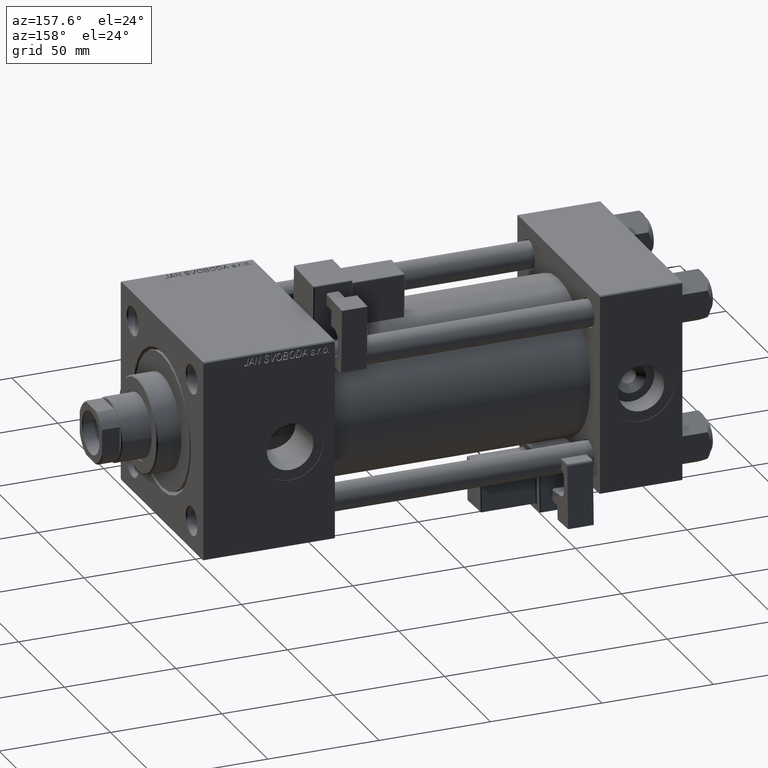
[diagram: clean part render]
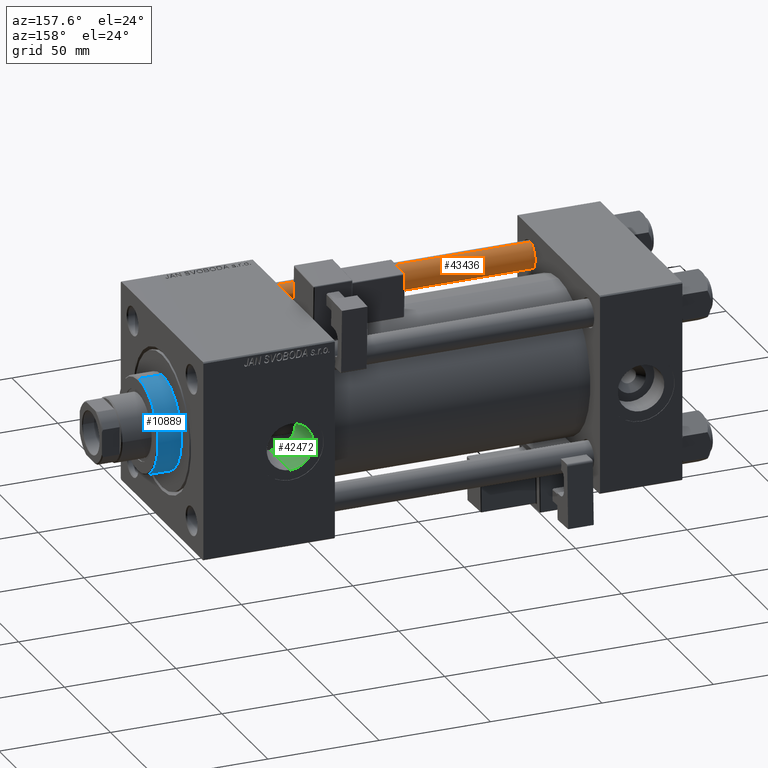
[diagram: same view with three faces highlighted in distinct colors, each labeled with its STEP entity id]
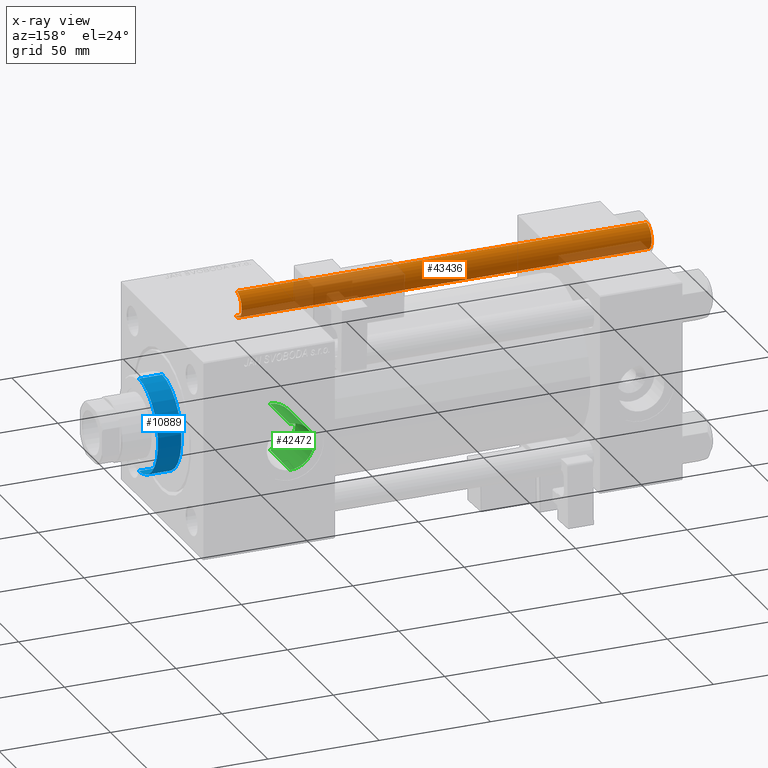
[diagram: x-ray of the same camera — body ghosted, the three highlighted faces saturated]
A machine part, auxiliary view with three faces highlighted in distinct colors.
The next image is the same camera in x-ray (body ghosted, the three faces saturated) — at least one of them is partly hidden behind the body in this view.
Their STEP definitions:

[orange] entity #43436 — the highlighted cylindrical surface (edge-blend (fillet) strip) has radius 6 mm, axis along (1, 0, -0).
#2311 = CARTESIAN_POINT ( 'NONE',  ( 6.000000000000000888, 7.347880794884120722E-16, 184.5000000000000000 ) ) ;
#2505 = AXIS2_PLACEMENT_3D ( 'NONE', #45267, #13201, #8955 ) ;
#3495 = EDGE_LOOP ( 'NONE', ( #44177, #25931, #28096, #32525 ) ) ;
#5031 = CARTESIAN_POINT ( 'NONE',  ( 0.000000000000000000, 0.000000000000000000, 184.5000000000000000 ) ) ;
#5228 = CARTESIAN_POINT ( 'NONE',  ( 6.000000000000000888, 7.347880794884120722E-16, 0.5000000000000281997 ) ) ;
#5950 = CARTESIAN_POINT ( 'NONE',  ( -6.000000000000000888, 0.000000000000000000, 0.5000000000000281997 ) ) ;
#6296 = DIRECTION ( 'NONE',  ( -0.000000000000000000, -0.000000000000000000, -1.000000000000000000 ) ) ;
#8955 = DIRECTION ( 'NONE',  ( -1.000000000000000000, 0.000000000000000000, 0.000000000000000000 ) ) ;
#9008 = DIRECTION ( 'NONE',  ( 0.000000000000000000, 0.000000000000000000, -1.000000000000000000 ) ) ;
#9875 = EDGE_CURVE ( 'NONE', #40016, #18573, #34541, .T. ) ;
#9911 = DIRECTION ( 'NONE',  ( -0.000000000000000000, -0.000000000000000000, -1.000000000000000000 ) ) ;
#12264 = VECTOR ( 'NONE', #9911, 1000.000000000000000 ) ;
#12305 = EDGE_CURVE ( 'NONE', #48878, #40016, #31828, .T. ) ;
#13099 = CARTESIAN_POINT ( 'NONE',  ( 0.000000000000000000, 0.000000000000000000, 0.5000000000000281997 ) ) ;
#13201 = DIRECTION ( 'NONE',  ( -0.000000000000000000, -0.000000000000000000, -1.000000000000000000 ) ) ;
#14268 = LINE ( 'NONE', #25927, #41997 ) ;
#15811 = CIRCLE ( 'NONE', #23443, 6.000000000000000888 ) ;
#18573 = VERTEX_POINT ( 'NONE', #5950 ) ;
#20943 = DIRECTION ( 'NONE',  ( 1.000000000000000000, 0.000000000000000000, 0.000000000000000000 ) ) ;
#21051 = DIRECTION ( 'NONE',  ( 1.000000000000000000, 0.000000000000000000, 0.000000000000000000 ) ) ;
#23443 = AXIS2_PLACEMENT_3D ( 'NONE', #13099, #29271, #21051 ) ;
#25927 = CARTESIAN_POINT ( 'NONE',  ( 6.000000000000000888, 7.347880794884120722E-16, 185.0000000000000000 ) ) ;
#25931 = ORIENTED_EDGE ( 'NONE', *, *, #12305, .T. ) ;
#28096 = ORIENTED_EDGE ( 'NONE', *, *, #9875, .T. ) ;
#29271 = DIRECTION ( 'NONE',  ( -0.000000000000000000, -0.000000000000000000, 1.000000000000000000 ) ) ;
#31343 = EDGE_CURVE ( 'NONE', #48878, #47246, #14268, .T. ) ;
#31828 = CIRCLE ( 'NONE', #45369, 6.000000000000000888 ) ;
#32525 = ORIENTED_EDGE ( 'NONE', *, *, #32735, .T. ) ;
#32735 = EDGE_CURVE ( 'NONE', #18573, #47246, #15811, .T. ) ;
#34040 = CARTESIAN_POINT ( 'NONE',  ( -6.000000000000000888, 0.000000000000000000, 184.5000000000000000 ) ) ;
#34541 = LINE ( 'NONE', #50195, #12264 ) ;
#40016 = VERTEX_POINT ( 'NONE', #34040 ) ;
#40496 = CYLINDRICAL_SURFACE ( 'NONE', #2505, 6.000000000000000888 ) ;
#40757 = FACE_OUTER_BOUND ( 'NONE', #3495, .T. ) ;
#41997 = VECTOR ( 'NONE', #6296, 1000.000000000000000 ) ;
#43436 = ADVANCED_FACE ( 'NONE', ( #40757 ), #40496, .T. ) ;
#44177 = ORIENTED_EDGE ( 'NONE', *, *, #31343, .F. ) ;
#45267 = CARTESIAN_POINT ( 'NONE',  ( 0.000000000000000000, 0.000000000000000000, 185.0000000000000000 ) ) ;
#45369 = AXIS2_PLACEMENT_3D ( 'NONE', #5031, #9008, #20943 ) ;
#47246 = VERTEX_POINT ( 'NONE', #5228 ) ;
#48878 = VERTEX_POINT ( 'NONE', #2311 ) ;
#50195 = CARTESIAN_POINT ( 'NONE',  ( -6.000000000000000888, 0.000000000000000000, 185.0000000000000000 ) ) ;

[blue] entity #10889 — the highlighted cylindrical surface (partial cylindrical patch) has radius 21 mm, axis along (-1, -0, -0).
#2695 = EDGE_CURVE ( 'NONE', #46260, #7201, #29916, .T. ) ;
#2970 = FACE_OUTER_BOUND ( 'NONE', #18050, .T. ) ;
#5525 = AXIS2_PLACEMENT_3D ( 'NONE', #11732, #7210, #15709 ) ;
#7201 = VERTEX_POINT ( 'NONE', #21617 ) ;
#7210 = DIRECTION ( 'NONE',  ( -0.000000000000000000, -0.000000000000000000, -1.000000000000000000 ) ) ;
#8347 = CARTESIAN_POINT ( 'NONE',  ( 0.000000000000000000, 0.000000000000000000, 39.19999999999999574 ) ) ;
#9463 = LINE ( 'NONE', #20600, #19447 ) ;
#10889 = ADVANCED_FACE ( 'NONE', ( #2970 ), #31874, .T. ) ;
#11732 = CARTESIAN_POINT ( 'NONE',  ( 0.000000000000000000, 0.000000000000000000, 39.69999999999999574 ) ) ;
#13732 = CARTESIAN_POINT ( 'NONE',  ( -21.00000000000000000, 0.000000000000000000, 28.69999999999999929 ) ) ;
#15709 = DIRECTION ( 'NONE',  ( -1.000000000000000000, 0.000000000000000000, 0.000000000000000000 ) ) ;
#16314 = DIRECTION ( 'NONE',  ( 1.000000000000000000, 0.000000000000000000, 0.000000000000000000 ) ) ;
#16573 = DIRECTION ( 'NONE',  ( 0.000000000000000000, 0.000000000000000000, -1.000000000000000000 ) ) ;
#16640 = DIRECTION ( 'NONE',  ( -0.000000000000000000, -0.000000000000000000, -1.000000000000000000 ) ) ;
#16672 = CARTESIAN_POINT ( 'NONE',  ( -21.00000000000000000, 0.000000000000000000, 39.19999999999999574 ) ) ;
#17246 = AXIS2_PLACEMENT_3D ( 'NONE', #8347, #16573, #16314 ) ;
#18050 = EDGE_LOOP ( 'NONE', ( #46280, #35727, #22481, #42356 ) ) ;
#19447 = VECTOR ( 'NONE', #16640, 1000.000000000000000 ) ;
#20375 = EDGE_CURVE ( 'NONE', #7201, #32232, #41868, .T. ) ;
#20600 = CARTESIAN_POINT ( 'NONE',  ( -21.00000000000000000, 0.000000000000000000, 39.69999999999999574 ) ) ;
#21617 = CARTESIAN_POINT ( 'NONE',  ( 21.00000000000000000, 2.571758278209441661E-15, 39.19999999999999574 ) ) ;
#22481 = ORIENTED_EDGE ( 'NONE', *, *, #27490, .T. ) ;
#22523 = AXIS2_PLACEMENT_3D ( 'NONE', #28038, #24041, #40193 ) ;
#24041 = DIRECTION ( 'NONE',  ( 0.000000000000000000, 0.000000000000000000, 1.000000000000000000 ) ) ;
#27490 = EDGE_CURVE ( 'NONE', #32232, #43530, #45361, .T. ) ;
#28038 = CARTESIAN_POINT ( 'NONE',  ( 0.000000000000000000, 0.000000000000000000, 28.69999999999999929 ) ) ;
#29426 = CARTESIAN_POINT ( 'NONE',  ( 21.00000000000000000, 2.571758278209441661E-15, 39.69999999999999574 ) ) ;
#29916 = CIRCLE ( 'NONE', #17246, 21.00000000000000000 ) ;
#31874 = CYLINDRICAL_SURFACE ( 'NONE', #5525, 21.00000000000000000 ) ;
#32232 = VERTEX_POINT ( 'NONE', #50846 ) ;
#34691 = DIRECTION ( 'NONE',  ( -0.000000000000000000, -0.000000000000000000, -1.000000000000000000 ) ) ;
#35727 = ORIENTED_EDGE ( 'NONE', *, *, #20375, .T. ) ;
#40193 = DIRECTION ( 'NONE',  ( 1.000000000000000000, 0.000000000000000000, 0.000000000000000000 ) ) ;
#41868 = LINE ( 'NONE', #29426, #51865 ) ;
#42356 = ORIENTED_EDGE ( 'NONE', *, *, #51711, .F. ) ;
#43530 = VERTEX_POINT ( 'NONE', #13732 ) ;
#45361 = CIRCLE ( 'NONE', #22523, 21.00000000000000000 ) ;
#46260 = VERTEX_POINT ( 'NONE', #16672 ) ;
#46280 = ORIENTED_EDGE ( 'NONE', *, *, #2695, .T. ) ;
#50846 = CARTESIAN_POINT ( 'NONE',  ( 21.00000000000000000, 2.571758278209441661E-15, 28.69999999999999929 ) ) ;
#51711 = EDGE_CURVE ( 'NONE', #46260, #43530, #9463, .T. ) ;
#51865 = VECTOR ( 'NONE', #34691, 1000.000000000000000 ) ;

[green] entity #42472 — the highlighted cylindrical surface (edge-blend (fillet) strip) has radius 10.48 mm, axis along (0, 1, 0).
#851 = CARTESIAN_POINT ( 'NONE',  ( 176.0000000000000000, 44.80000000000000426, -10.47999999999998622 ) ) ;
#1569 = CARTESIAN_POINT ( 'NONE',  ( 165.5374198107919597, 24.99268303089189303, 0.6963761674250704692 ) ) ;
#2089 = AXIS2_PLACEMENT_3D ( 'NONE', #20980, #17013, #21241 ) ;
#2097 = CARTESIAN_POINT ( 'NONE',  ( 174.6214610596253749, 22.72910592596696233, 10.41201292843504156 ) ) ;
#2203 = LINE ( 'NONE', #18391, #30466 ) ;
#5549 = CARTESIAN_POINT ( 'NONE',  ( 165.5198898269284769, 25.00004618454967087, 0.3460486699088957674 ) ) ;
#5780 = EDGE_CURVE ( 'NONE', #44260, #8517, #15643, .T. ) ;
#5810 = CARTESIAN_POINT ( 'NONE',  ( 166.1992050399645109, 24.72266741087924657, 3.727330997008750479 ) ) ;
#6002 = AXIS2_PLACEMENT_3D ( 'NONE', #21343, #40948, #21607 ) ;
#7094 = CARTESIAN_POINT ( 'NONE',  ( 172.2810024023066831, 22.99792823106281858, 9.803852027551132053 ) ) ;
#7359 = CARTESIAN_POINT ( 'NONE',  ( 169.0758525530453085, 23.72565358630829380, 7.895767310681530482 ) ) ;
#8244 = CARTESIAN_POINT ( 'NONE',  ( 176.0000000000000000, 22.69734786269092908, 10.47999999999998622 ) ) ;
#8517 = VERTEX_POINT ( 'NONE', #51435 ) ;
#9011 = CARTESIAN_POINT ( 'NONE',  ( 172.6000436906344078, 22.94823602494486536, -9.919209866290790600 ) ) ;
#10583 = CARTESIAN_POINT ( 'NONE',  ( 169.5996881253370248, 23.57603182418388954, 8.326838647318266950 ) ) ;
#11352 = CARTESIAN_POINT ( 'NONE',  ( 173.2628663816417998, 22.85945295365116081, 10.12213220648004253 ) ) ;
#12459 = VECTOR ( 'NONE', #33560, 1000.000000000000000 ) ;
#12993 = CARTESIAN_POINT ( 'NONE',  ( 165.6062911791970294, 24.96393005755822259, 1.386124428227898386 ) ) ;
#13255 = CARTESIAN_POINT ( 'NONE',  ( 170.7282494435933131, 23.29501474869028499, -9.083392073400743172 ) ) ;
#13515 = CARTESIAN_POINT ( 'NONE',  ( 167.6900300022859653, 24.16988760624361277, -6.394633543806187426 ) ) ;
#13782 = CARTESIAN_POINT ( 'NONE',  ( 165.7934469296605187, 24.88653244420935096, 2.403216301759338869 ) ) ;
#14043 = CARTESIAN_POINT ( 'NONE',  ( 173.2625725609530321, 22.85946943249186347, -10.12210048819255803 ) ) ;
#14564 = CARTESIAN_POINT ( 'NONE',  ( 168.1304464638024001, 24.02202805608321867, 6.929393258577144721 ) ) ;
#14596 = EDGE_CURVE ( 'NONE', #32589, #44260, #29069, .T. ) ;
#15643 = CIRCLE ( 'NONE', #2089, 10.47999999999998622 ) ;
#16329 = FACE_OUTER_BOUND ( 'NONE', #30566, .T. ) ;
#16981 = CARTESIAN_POINT ( 'NONE',  ( 167.4852564452334605, 24.24127047932947576, -6.119244249603038810 ) ) ;
#17013 = DIRECTION ( 'NONE',  ( 0.000000000000000000, 1.000000000000000000, 0.000000000000000000 ) ) ;
#17502 = CARTESIAN_POINT ( 'NONE',  ( 169.5910252885424541, 23.57840781445655765, -8.320120710421903709 ) ) ;
#18026 = CARTESIAN_POINT ( 'NONE',  ( 174.6166885166040004, 22.72945378449816545, -10.41125041824597552 ) ) ;
#18391 = CARTESIAN_POINT ( 'NONE',  ( 176.0000000000000000, -29.64191626734002938, 10.47999999999998622 ) ) ;
#18457 = ORIENTED_EDGE ( 'NONE', *, *, #14596, .T. ) ;
#18789 = CARTESIAN_POINT ( 'NONE',  ( 172.6029776176335133, 22.94782015708122103, 9.920166318359200375 ) ) ;
#18949 = CARTESIAN_POINT ( 'NONE',  ( 175.9999999999999432, 22.69734786269093618, -10.48000000000000043 ) ) ;
#20980 = CARTESIAN_POINT ( 'NONE',  ( 176.0000000000000000, 44.80000000000000426, 0.000000000000000000 ) ) ;
#21241 = DIRECTION ( 'NONE',  ( 0.000000000000000000, 0.000000000000000000, 1.000000000000000000 ) ) ;
#21343 = CARTESIAN_POINT ( 'NONE',  ( 176.0000000000000000, -29.64191626734002938, 0.000000000000000000 ) ) ;
#21365 = ORIENTED_EDGE ( 'NONE', *, *, #39164, .F. ) ;
#21470 = CARTESIAN_POINT ( 'NONE',  ( 175.9999999999999432, 22.69734786269093618, -10.48000000000000043 ) ) ;
#21607 = DIRECTION ( 'NONE',  ( 0.000000000000000000, 0.000000000000000000, 1.000000000000000000 ) ) ;
#23021 = CARTESIAN_POINT ( 'NONE',  ( 175.3073892563824927, 22.69734786269092552, 10.47999999999998799 ) ) ;
#25183 = CARTESIAN_POINT ( 'NONE',  ( 166.0804400412437474, 24.77011599629385330, -3.398972836081199933 ) ) ;
#25607 = CARTESIAN_POINT ( 'NONE',  ( 176.0000000000000000, -29.64191626734002938, -10.47999999999998622 ) ) ;
#25702 = CARTESIAN_POINT ( 'NONE',  ( 166.1986316166709798, 24.72289697108949014, -3.725725694189044201 ) ) ;
#25967 = CARTESIAN_POINT ( 'NONE',  ( 166.0806528163204518, 24.77003135787058241, 3.399521362015800907 ) ) ;
#26233 = CARTESIAN_POINT ( 'NONE',  ( 169.0691750376469429, 23.72760602978987521, -7.889944006337735516 ) ) ;
#26493 = CARTESIAN_POINT ( 'NONE',  ( 167.6971979191698381, 24.16742604129797911, 6.403892675369887044 ) ) ;
#27299 = ORIENTED_EDGE ( 'NONE', *, *, #5780, .T. ) ;
#29069 = LINE ( 'NONE', #25607, #12459 ) ;
#29431 = CARTESIAN_POINT ( 'NONE',  ( 168.3518897779276813, 23.95018848110602860, -7.172942060376085394 ) ) ;
#29950 = CARTESIAN_POINT ( 'NONE',  ( 165.8779669537605628, 24.85189244119416685, 2.737634207123012420 ) ) ;
#30466 = VECTOR ( 'NONE', #38760, 1000.000000000000000 ) ;
#30566 = EDGE_LOOP ( 'NONE', ( #52397, #18457, #27299, #21365 ) ) ;
#32589 = VERTEX_POINT ( 'NONE', #18949 ) ;
#33140 = CARTESIAN_POINT ( 'NONE',  ( 165.7929659686116111, 24.88673000804574542, -2.401115563268494846 ) ) ;
#33560 = DIRECTION ( 'NONE',  ( -0.000000000000000000, 1.000000000000000000, -0.000000000000000000 ) ) ;
#35460 = CARTESIAN_POINT ( 'NONE',  ( 167.4914286754354578, 24.23909680393989774, 6.127889787572162739 ) ) ;
#37618 = CARTESIAN_POINT ( 'NONE',  ( 172.2769050068437480, 22.99857768367995803, -9.802338176841910666 ) ) ;
#37876 = CARTESIAN_POINT ( 'NONE',  ( 166.9171465358876674, 24.44468804556173325, -5.272058887039579034 ) ) ;
#38392 = CARTESIAN_POINT ( 'NONE',  ( 173.6006309434185368, 22.82132339589592362, -10.20748497981748493 ) ) ;
#38760 = DIRECTION ( 'NONE',  ( -0.000000000000000000, 1.000000000000000000, -0.000000000000000000 ) ) ;
#38911 = CARTESIAN_POINT ( 'NONE',  ( 168.3583976685859795, 23.94811038994632924, 7.179864457733663663 ) ) ;
#39164 = EDGE_CURVE ( 'NONE', #44108, #8517, #2203, .T. ) ;
#40948 = DIRECTION ( 'NONE',  ( -0.000000000000000000, 1.000000000000000000, -0.000000000000000000 ) ) ;
#41055 = B_SPLINE_CURVE_WITH_KNOTS ( 'NONE', 3,
 ( #21470, #49572, #18026, #38392, #14043, #9011, #37618, #45321, #13255, #17502, #26233, #29431, #42396, #13515, #16981, #37876, #45581, #25702, #25183, #42134, #33140, #41874, #49311, #5549, #1569, #12993, #50096, #13782, #29950, #25967, #5810, #47145, #50618, #35460, #26493, #14564, #38911, #7359, #10583, #43677, #47668, #7094, #18789, #11352, #51121, #2097, #23021, #42650 ),
 .UNSPECIFIED., .F., .F.,
 ( 4, 2, 2, 2, 2, 2, 2, 2, 2, 2, 2, 2, 2, 2, 2, 2, 2, 2, 2, 2, 2, 2, 2, 4 ),
 ( 0.01463821909121455940, 0.01670930280020126862, 0.01774484465469462063, 0.01878038650918797611, 0.02085147021817461074, 0.02292255392716124884, 0.02395809578165453493, 0.02499363763614782102, 0.02706472134513440014, 0.02810026319962768623, 0.02913580505412097579, 0.03120688876310756532, 0.03224243061760086876, 0.03327797247209415832, 0.03431351432658745482, 0.03534905618108075132, 0.03742013989006734431, 0.03845568174456066163, 0.03949122359905397894, 0.04156230730804066215, 0.04363339101702735229, 0.04466893287152065573, 0.04570447472601396610, 0.04777555843500057298 ),
 .UNSPECIFIED. ) ;
#41874 = CARTESIAN_POINT ( 'NONE',  ( 165.5896143113014034, 24.97059224946896450, -1.388621070306794714 ) ) ;
#42134 = CARTESIAN_POINT ( 'NONE',  ( 165.8774204008528557, 24.85211448620741237, -2.735702537687458413 ) ) ;
#42396 = CARTESIAN_POINT ( 'NONE',  ( 168.1238065727190758, 24.02420213949848815, -6.921886781690114177 ) ) ;
#42472 = ADVANCED_FACE ( 'NONE', ( #16329 ), #48658, .F. ) ;
#42650 = CARTESIAN_POINT ( 'NONE',  ( 176.0000000000000000, 22.69734786269092908, 10.47999999999998622 ) ) ;
#43677 = CARTESIAN_POINT ( 'NONE',  ( 170.7388075418619451, 23.29260463244820301, 9.089559278086969840 ) ) ;
#44108 = VERTEX_POINT ( 'NONE', #8244 ) ;
#44260 = VERTEX_POINT ( 'NONE', #851 ) ;
#45321 = CARTESIAN_POINT ( 'NONE',  ( 171.3305262906433200, 23.16436360660826566, -9.407119406203932499 ) ) ;
#45581 = CARTESIAN_POINT ( 'NONE',  ( 166.5951675388459421, 24.56748508602188963, -4.674328070843602134 ) ) ;
#47053 = EDGE_CURVE ( 'NONE', #32589, #44108, #41055, .T. ) ;
#47145 = CARTESIAN_POINT ( 'NONE',  ( 166.5972116635182658, 24.56669364692477942, 4.678748159390218042 ) ) ;
#47668 = CARTESIAN_POINT ( 'NONE',  ( 171.3377099006112871, 23.16297019228598231, 9.410509118438300291 ) ) ;
#48658 = CYLINDRICAL_SURFACE ( 'NONE', #6002, 10.47999999999998622 ) ;
#49311 = CARTESIAN_POINT ( 'NONE',  ( 165.5202219243777506, 24.99990696930469980, -0.7020592370721140396 ) ) ;
#49572 = CARTESIAN_POINT ( 'NONE',  ( 175.3034659601954104, 22.69734786269092552, -10.47999999999998266 ) ) ;
#50096 = CARTESIAN_POINT ( 'NONE',  ( 165.6576090084523969, 24.94255044980511826, 1.727461359525257034 ) ) ;
#50618 = CARTESIAN_POINT ( 'NONE',  ( 166.9205644474328665, 24.44339300292596917, 5.278250371298481625 ) ) ;
#51121 = CARTESIAN_POINT ( 'NONE',  ( 173.6024807966722960, 22.82111456472382116, 10.20795265357758730 ) ) ;
#51435 = CARTESIAN_POINT ( 'NONE',  ( 176.0000000000000000, 44.80000000000000426, 10.47999999999998622 ) ) ;
#52397 = ORIENTED_EDGE ( 'NONE', *, *, #47053, .F. ) ;